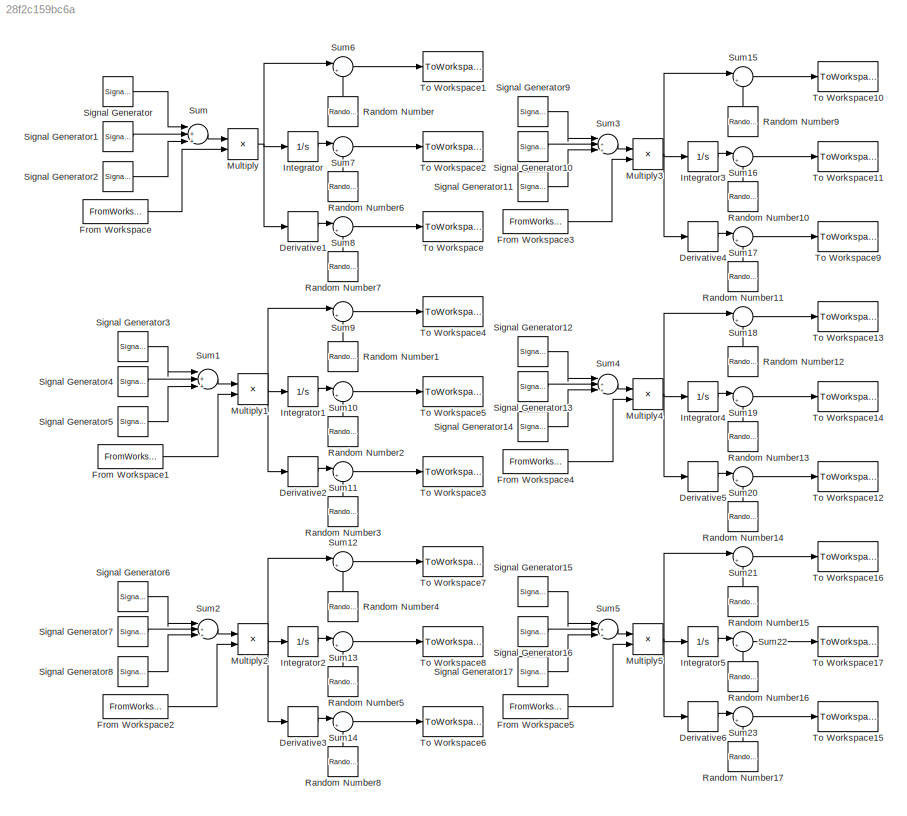
MODEL slx_28f2c159bc6a
KIND model
CONFIG AbsTol = auto
CONFIG EnableMultiTasking = off
CONFIG FixedStep = 0.05
CONFIG MaxStep = auto
CONFIG MinStep = auto
CONFIG RelTol = 1e-3
CONFIG SampleTimeConstraint = Unconstrained
CONFIG Solver = FixedStepAuto
CONFIG SolverName = FixedStepAuto
CONFIG StartTime = 0.0
CONFIG StopTime = 60
BLOCK [Derivative] Derivative1
BLOCK [Derivative] Derivative2
BLOCK [Derivative] Derivative3
BLOCK [Derivative] Derivative4
BLOCK [Derivative] Derivative5
BLOCK [Derivative] Derivative6
BLOCK [FromWorkspace] From Workspace
  VariableName = pol
  ZeroCross = on
BLOCK [FromWorkspace] From Workspace1
  SampleTime = 0
  VariableName = pol
  ZeroCross = on
BLOCK [FromWorkspace] From Workspace2
  SampleTime = 0
  VariableName = pol
  ZeroCross = on
BLOCK [FromWorkspace] From Workspace3
  VariableName = pol
  ZeroCross = on
BLOCK [FromWorkspace] From Workspace4
  VariableName = pol
  ZeroCross = on
BLOCK [FromWorkspace] From Workspace5
  VariableName = pol
  ZeroCross = on
BLOCK [Integrator] Integrator
  Ports = [1, 1]
BLOCK [Integrator] Integrator1
  Ports = [1, 1]
BLOCK [Integrator] Integrator2
  Ports = [1, 1]
BLOCK [Integrator] Integrator3
  Ports = [1, 1]
BLOCK [Integrator] Integrator4
  Ports = [1, 1]
BLOCK [Integrator] Integrator5
  Ports = [1, 1]
BLOCK [Product] Multiply
  InputSameDT = off
  OutDataTypeStr = Inherit: Inherit via internal rule
  Ports = [2, 1]
  RndMeth = Floor
  SaturateOnIntegerOverflow = off
BLOCK [Product] Multiply1
  InputSameDT = off
  OutDataTypeStr = Inherit: Inherit via internal rule
  Ports = [2, 1]
  RndMeth = Floor
  SaturateOnIntegerOverflow = off
BLOCK [Product] Multiply2
  InputSameDT = off
  OutDataTypeStr = Inherit: Inherit via internal rule
  Ports = [2, 1]
  RndMeth = Floor
  SaturateOnIntegerOverflow = off
BLOCK [Product] Multiply3
  InputSameDT = off
  OutDataTypeStr = Inherit: Inherit via internal rule
  Ports = [2, 1]
  RndMeth = Floor
  SaturateOnIntegerOverflow = off
BLOCK [Product] Multiply4
  InputSameDT = off
  OutDataTypeStr = Inherit: Inherit via internal rule
  Ports = [2, 1]
  RndMeth = Floor
  SaturateOnIntegerOverflow = off
BLOCK [Product] Multiply5
  InputSameDT = off
  OutDataTypeStr = Inherit: Inherit via internal rule
  Ports = [2, 1]
  RndMeth = Floor
  SaturateOnIntegerOverflow = off
BLOCK [RandomNumber] Random Number
  Variance = spe_var
BLOCK [RandomNumber] Random Number1
  Seed = 3
  Variance = spe_var
BLOCK [RandomNumber] Random Number10
  Seed = 10
  Variance = pos_var
BLOCK [RandomNumber] Random Number11
  Seed = 11
  Variance = ace_var
BLOCK [RandomNumber] Random Number12
  Seed = 12
  Variance = spe_var
BLOCK [RandomNumber] Random Number13
  Seed = 13
  Variance = pos_var
BLOCK [RandomNumber] Random Number14
  Seed = 14
  Variance = ace_var
BLOCK [RandomNumber] Random Number15
  Seed = 15
  Variance = spe_var
BLOCK [RandomNumber] Random Number16
  Seed = 16
  Variance = pos_var
BLOCK [RandomNumber] Random Number17
  Seed = 17
  Variance = ace_var
BLOCK [RandomNumber] Random Number2
  Seed = 4
  Variance = pos_var
BLOCK [RandomNumber] Random Number3
  Seed = 5
  Variance = ace_var
BLOCK [RandomNumber] Random Number4
  Seed = 6
  Variance = spe_var
BLOCK [RandomNumber] Random Number5
  Seed = 7
  Variance = pos_var
BLOCK [RandomNumber] Random Number6
  Seed = 1
  Variance = pos_var
BLOCK [RandomNumber] Random Number7
  Seed = 2
  Variance = ace_var
BLOCK [RandomNumber] Random Number8
  Seed = 8
  Variance = ace_var
BLOCK [RandomNumber] Random Number9
  Seed = 9
  Variance = spe_var
BLOCK [SignalGenerator] Signal Generator
  Amplitude = 0.12
  Frequency = 1.25
  Ports = [0, 1]
  Units = rad/sec
BLOCK [SignalGenerator] Signal Generator1
  Amplitude = 0.12
  Frequency = 0.95
  Ports = [0, 1]
  Units = rad/sec
BLOCK [SignalGenerator] Signal Generator10
  Amplitude = -0.1
  Ports = [0, 1]
  Units = rad/sec
BLOCK [SignalGenerator] Signal Generator11
  Amplitude = -0.1
  Frequency = 0.4
  Ports = [0, 1]
  Units = rad/sec
BLOCK [SignalGenerator] Signal Generator12
  Amplitude = 0.12
  Ports = [0, 1]
  Units = rad/sec
BLOCK [SignalGenerator] Signal Generator13
  Amplitude = 0.12
  Frequency = 0.66
  Ports = [0, 1]
  Units = rad/sec
BLOCK [SignalGenerator] Signal Generator14
  Amplitude = 0.12
  Frequency = 0.33
  Ports = [0, 1]
  Units = rad/sec
BLOCK [SignalGenerator] Signal Generator15
  Amplitude = 0.3
  Frequency = 0.45
  Ports = [0, 1]
  Units = rad/sec
BLOCK [SignalGenerator] Signal Generator16
  Amplitude = 0.3
  Frequency = 0.5
  Ports = [0, 1]
  Units = rad/sec
BLOCK [SignalGenerator] Signal Generator17
  Amplitude = 0.3
  Frequency = 0.125
  Ports = [0, 1]
  Units = rad/sec
BLOCK [SignalGenerator] Signal Generator2
  Amplitude = -0.15
  Ports = [0, 1]
  Units = rad/sec
BLOCK [SignalGenerator] Signal Generator3
  Amplitude = 0.1
  Frequency = 1.3
  Ports = [0, 1]
  Units = rad/sec
BLOCK [SignalGenerator] Signal Generator4
  Amplitude = 0.1
  Frequency = 0.85
  Ports = [0, 1]
  Units = rad/sec
BLOCK [SignalGenerator] Signal Generator5
  Amplitude = -0.12
  Frequency = 0.25
  Ports = [0, 1]
  Units = rad/sec
BLOCK [SignalGenerator] Signal Generator6
  Amplitude = 0.1
  Frequency = 2.5
  Ports = [0, 1]
  Units = rad/sec
BLOCK [SignalGenerator] Signal Generator7
  Amplitude = 0.1
  Frequency = 2
  Ports = [0, 1]
  Units = rad/sec
BLOCK [SignalGenerator] Signal Generator8
  Amplitude = 0.1
  Frequency = 0.85
  Ports = [0, 1]
  Units = rad/sec
BLOCK [SignalGenerator] Signal Generator9
  Amplitude = 0.2
  Frequency = 0.4
  Ports = [0, 1]
  Units = rad/sec
BLOCK [Sum] Sum
  InputSameDT = off
  Inputs = |+++
  OutDataTypeStr = Inherit: Inherit via internal rule
  Ports = [3, 1]
  SaturateOnIntegerOverflow = off
BLOCK [Sum] Sum1
  InputSameDT = off
  Inputs = |+++
  OutDataTypeStr = Inherit: Inherit via internal rule
  Ports = [3, 1]
  SaturateOnIntegerOverflow = off
BLOCK [Sum] Sum10
  IconShape = round
  InputSameDT = off
  Inputs = |++
  OutDataTypeStr = Inherit: Inherit via internal rule
  Ports = [2, 1]
  SaturateOnIntegerOverflow = off
BLOCK [Sum] Sum11
  IconShape = round
  InputSameDT = off
  Inputs = |++
  OutDataTypeStr = Inherit: Inherit via internal rule
  Ports = [2, 1]
  SaturateOnIntegerOverflow = off
BLOCK [Sum] Sum12
  IconShape = round
  InputSameDT = off
  Inputs = |++
  OutDataTypeStr = Inherit: Inherit via internal rule
  Ports = [2, 1]
  SaturateOnIntegerOverflow = off
BLOCK [Sum] Sum13
  IconShape = round
  InputSameDT = off
  Inputs = |++
  OutDataTypeStr = Inherit: Inherit via internal rule
  Ports = [2, 1]
  SaturateOnIntegerOverflow = off
BLOCK [Sum] Sum14
  IconShape = round
  InputSameDT = off
  Inputs = |++
  OutDataTypeStr = Inherit: Inherit via internal rule
  Ports = [2, 1]
  SaturateOnIntegerOverflow = off
BLOCK [Sum] Sum15
  IconShape = round
  InputSameDT = off
  Inputs = |++
  OutDataTypeStr = Inherit: Inherit via internal rule
  Ports = [2, 1]
  SaturateOnIntegerOverflow = off
BLOCK [Sum] Sum16
  IconShape = round
  InputSameDT = off
  Inputs = |++
  OutDataTypeStr = Inherit: Inherit via internal rule
  Ports = [2, 1]
  SaturateOnIntegerOverflow = off
BLOCK [Sum] Sum17
  IconShape = round
  InputSameDT = off
  Inputs = |++
  OutDataTypeStr = Inherit: Inherit via internal rule
  Ports = [2, 1]
  SaturateOnIntegerOverflow = off
BLOCK [Sum] Sum18
  IconShape = round
  InputSameDT = off
  Inputs = |++
  OutDataTypeStr = Inherit: Inherit via internal rule
  Ports = [2, 1]
  SaturateOnIntegerOverflow = off
BLOCK [Sum] Sum19
  IconShape = round
  InputSameDT = off
  Inputs = |++
  OutDataTypeStr = Inherit: Inherit via internal rule
  Ports = [2, 1]
  SaturateOnIntegerOverflow = off
BLOCK [Sum] Sum2
  InputSameDT = off
  Inputs = |+++
  OutDataTypeStr = Inherit: Inherit via internal rule
  Ports = [3, 1]
  SaturateOnIntegerOverflow = off
BLOCK [Sum] Sum20
  IconShape = round
  InputSameDT = off
  Inputs = |++
  OutDataTypeStr = Inherit: Inherit via internal rule
  Ports = [2, 1]
  SaturateOnIntegerOverflow = off
BLOCK [Sum] Sum21
  IconShape = round
  InputSameDT = off
  Inputs = |++
  OutDataTypeStr = Inherit: Inherit via internal rule
  Ports = [2, 1]
  SaturateOnIntegerOverflow = off
BLOCK [Sum] Sum22
  IconShape = round
  InputSameDT = off
  Inputs = |++
  OutDataTypeStr = Inherit: Inherit via internal rule
  Ports = [2, 1]
  SaturateOnIntegerOverflow = off
BLOCK [Sum] Sum23
  IconShape = round
  InputSameDT = off
  Inputs = |++
  OutDataTypeStr = Inherit: Inherit via internal rule
  Ports = [2, 1]
  SaturateOnIntegerOverflow = off
BLOCK [Sum] Sum3
  InputSameDT = off
  Inputs = |+++
  OutDataTypeStr = Inherit: Inherit via internal rule
  Ports = [3, 1]
  SaturateOnIntegerOverflow = off
BLOCK [Sum] Sum4
  InputSameDT = off
  Inputs = |+++
  OutDataTypeStr = Inherit: Inherit via internal rule
  Ports = [3, 1]
  SaturateOnIntegerOverflow = off
BLOCK [Sum] Sum5
  InputSameDT = off
  Inputs = |+++
  OutDataTypeStr = Inherit: Inherit via internal rule
  Ports = [3, 1]
  SaturateOnIntegerOverflow = off
BLOCK [Sum] Sum6
  IconShape = round
  InputSameDT = off
  Inputs = |++
  OutDataTypeStr = Inherit: Inherit via internal rule
  Ports = [2, 1]
  SaturateOnIntegerOverflow = off
BLOCK [Sum] Sum7
  IconShape = round
  InputSameDT = off
  Inputs = |++
  OutDataTypeStr = Inherit: Inherit via internal rule
  Ports = [2, 1]
  SaturateOnIntegerOverflow = off
BLOCK [Sum] Sum8
  IconShape = round
  InputSameDT = off
  Inputs = |++
  OutDataTypeStr = Inherit: Inherit via internal rule
  Ports = [2, 1]
  SaturateOnIntegerOverflow = off
BLOCK [Sum] Sum9
  IconShape = round
  InputSameDT = off
  Inputs = |++
  OutDataTypeStr = Inherit: Inherit via internal rule
  Ports = [2, 1]
  SaturateOnIntegerOverflow = off
BLOCK [ToWorkspace] To Workspace
  FixptAsFi = on
  MaxDataPoints = inf
  Ports = [1]
  SampleTime = -1
  Save2DSignal = 3-D array (concatenate along third dimension)
  VariableName = ddq1
BLOCK [ToWorkspace] To Workspace1
  FixptAsFi = on
  MaxDataPoints = inf
  Ports = [1]
  SampleTime = -1
  Save2DSignal = 3-D array (concatenate along third dimension)
  VariableName = dq1
BLOCK [ToWorkspace] To Workspace10
  FixptAsFi = on
  MaxDataPoints = inf
  Ports = [1]
  SampleTime = -1
  Save2DSignal = 3-D array (concatenate along third dimension)
  VariableName = dq4
BLOCK [ToWorkspace] To Workspace11
  FixptAsFi = on
  MaxDataPoints = inf
  Ports = [1]
  SampleTime = -1
  Save2DSignal = 3-D array (concatenate along third dimension)
  VariableName = q4
BLOCK [ToWorkspace] To Workspace12
  FixptAsFi = on
  MaxDataPoints = inf
  Ports = [1]
  SampleTime = -1
  Save2DSignal = 3-D array (concatenate along third dimension)
  VariableName = ddq5
BLOCK [ToWorkspace] To Workspace13
  FixptAsFi = on
  MaxDataPoints = inf
  Ports = [1]
  SampleTime = -1
  Save2DSignal = 3-D array (concatenate along third dimension)
  VariableName = dq5
BLOCK [ToWorkspace] To Workspace14
  FixptAsFi = on
  MaxDataPoints = inf
  Ports = [1]
  SampleTime = -1
  Save2DSignal = 3-D array (concatenate along third dimension)
  VariableName = q5
BLOCK [ToWorkspace] To Workspace15
  FixptAsFi = on
  MaxDataPoints = inf
  Ports = [1]
  SampleTime = -1
  Save2DSignal = 3-D array (concatenate along third dimension)
  VariableName = ddq6
BLOCK [ToWorkspace] To Workspace16
  FixptAsFi = on
  MaxDataPoints = inf
  Ports = [1]
  SampleTime = -1
  Save2DSignal = 3-D array (concatenate along third dimension)
  VariableName = dq6
BLOCK [ToWorkspace] To Workspace17
  FixptAsFi = on
  MaxDataPoints = inf
  Ports = [1]
  SampleTime = -1
  Save2DSignal = 3-D array (concatenate along third dimension)
  VariableName = q6
BLOCK [ToWorkspace] To Workspace2
  FixptAsFi = on
  MaxDataPoints = inf
  Ports = [1]
  SampleTime = -1
  Save2DSignal = 3-D array (concatenate along third dimension)
  VariableName = q1
BLOCK [ToWorkspace] To Workspace3
  FixptAsFi = on
  MaxDataPoints = inf
  Ports = [1]
  SampleTime = -1
  Save2DSignal = 3-D array (concatenate along third dimension)
  VariableName = ddq2
BLOCK [ToWorkspace] To Workspace4
  FixptAsFi = on
  MaxDataPoints = inf
  Ports = [1]
  SampleTime = -1
  Save2DSignal = 3-D array (concatenate along third dimension)
  VariableName = dq2
BLOCK [ToWorkspace] To Workspace5
  FixptAsFi = on
  MaxDataPoints = inf
  Ports = [1]
  SampleTime = -1
  Save2DSignal = 3-D array (concatenate along third dimension)
  VariableName = q2
BLOCK [ToWorkspace] To Workspace6
  FixptAsFi = on
  MaxDataPoints = inf
  Ports = [1]
  SampleTime = -1
  Save2DSignal = 3-D array (concatenate along third dimension)
  VariableName = ddq3
BLOCK [ToWorkspace] To Workspace7
  FixptAsFi = on
  MaxDataPoints = inf
  Ports = [1]
  SampleTime = -1
  Save2DSignal = 3-D array (concatenate along third dimension)
  VariableName = dq3
BLOCK [ToWorkspace] To Workspace8
  FixptAsFi = on
  MaxDataPoints = inf
  Ports = [1]
  SampleTime = -1
  Save2DSignal = 3-D array (concatenate along third dimension)
  VariableName = q3
BLOCK [ToWorkspace] To Workspace9
  FixptAsFi = on
  MaxDataPoints = inf
  Ports = [1]
  SampleTime = -1
  Save2DSignal = 3-D array (concatenate along third dimension)
  VariableName = ddq4
LINE Derivative1:1 -> Sum8:1
LINE Derivative2:1 -> Sum11:1
LINE Derivative3:1 -> Sum14:1
LINE Derivative4:1 -> Sum17:1
LINE Derivative5:1 -> Sum20:1
LINE Derivative6:1 -> Sum23:1
LINE From Workspace1:1 -> Multiply1:2
LINE From Workspace2:1 -> Multiply2:2
LINE From Workspace3:1 -> Multiply3:2
LINE From Workspace4:1 -> Multiply4:2
LINE From Workspace5:1 -> Multiply5:2
LINE From Workspace:1 -> Multiply:2
LINE Integrator1:1 -> Sum10:1
LINE Integrator2:1 -> Sum13:1
LINE Integrator3:1 -> Sum16:1
LINE Integrator4:1 -> Sum19:1
LINE Integrator5:1 -> Sum22:1
LINE Integrator:1 -> Sum7:1
NET Multiply1:1 -> Derivative2:1, Integrator1:1, Sum9:1
NET Multiply2:1 -> Derivative3:1, Integrator2:1, Sum12:1
NET Multiply3:1 -> Derivative4:1, Integrator3:1, Sum15:1
NET Multiply4:1 -> Derivative5:1, Integrator4:1, Sum18:1
NET Multiply5:1 -> Derivative6:1, Integrator5:1, Sum21:1
NET Multiply:1 -> Derivative1:1, Integrator:1, Sum6:1
LINE Random Number10:1 -> Sum16:2
LINE Random Number11:1 -> Sum17:2
LINE Random Number12:1 -> Sum18:2
LINE Random Number13:1 -> Sum19:2
LINE Random Number14:1 -> Sum20:2
LINE Random Number15:1 -> Sum21:2
LINE Random Number16:1 -> Sum22:2
LINE Random Number17:1 -> Sum23:2
LINE Random Number1:1 -> Sum9:2
LINE Random Number2:1 -> Sum10:2
LINE Random Number3:1 -> Sum11:2
LINE Random Number4:1 -> Sum12:2
LINE Random Number5:1 -> Sum13:2
LINE Random Number6:1 -> Sum7:2
LINE Random Number7:1 -> Sum8:2
LINE Random Number8:1 -> Sum14:2
LINE Random Number9:1 -> Sum15:2
LINE Random Number:1 -> Sum6:2
LINE Signal Generator10:1 -> Sum3:2
LINE Signal Generator11:1 -> Sum3:3
LINE Signal Generator12:1 -> Sum4:1
LINE Signal Generator13:1 -> Sum4:2
LINE Signal Generator14:1 -> Sum4:3
LINE Signal Generator15:1 -> Sum5:1
LINE Signal Generator16:1 -> Sum5:2
LINE Signal Generator17:1 -> Sum5:3
LINE Signal Generator1:1 -> Sum:2
LINE Signal Generator2:1 -> Sum:3
LINE Signal Generator3:1 -> Sum1:1
LINE Signal Generator4:1 -> Sum1:2
LINE Signal Generator5:1 -> Sum1:3
LINE Signal Generator6:1 -> Sum2:1
LINE Signal Generator7:1 -> Sum2:2
LINE Signal Generator8:1 -> Sum2:3
LINE Signal Generator9:1 -> Sum3:1
LINE Signal Generator:1 -> Sum:1
LINE Sum10:1 -> To Workspace5:1
LINE Sum11:1 -> To Workspace3:1
LINE Sum12:1 -> To Workspace7:1
LINE Sum13:1 -> To Workspace8:1
LINE Sum14:1 -> To Workspace6:1
LINE Sum15:1 -> To Workspace10:1
LINE Sum16:1 -> To Workspace11:1
LINE Sum17:1 -> To Workspace9:1
LINE Sum18:1 -> To Workspace13:1
LINE Sum19:1 -> To Workspace14:1
LINE Sum1:1 -> Multiply1:1
LINE Sum20:1 -> To Workspace12:1
LINE Sum21:1 -> To Workspace16:1
LINE Sum22:1 -> To Workspace17:1
LINE Sum23:1 -> To Workspace15:1
LINE Sum2:1 -> Multiply2:1
LINE Sum3:1 -> Multiply3:1
LINE Sum4:1 -> Multiply4:1
LINE Sum5:1 -> Multiply5:1
LINE Sum6:1 -> To Workspace1:1
LINE Sum7:1 -> To Workspace2:1
LINE Sum8:1 -> To Workspace:1
LINE Sum9:1 -> To Workspace4:1
LINE Sum:1 -> Multiply:1
note: NET lines group one-source signal fan-out (src -> all destinations, sorted); 1:1 wires keep LINE
